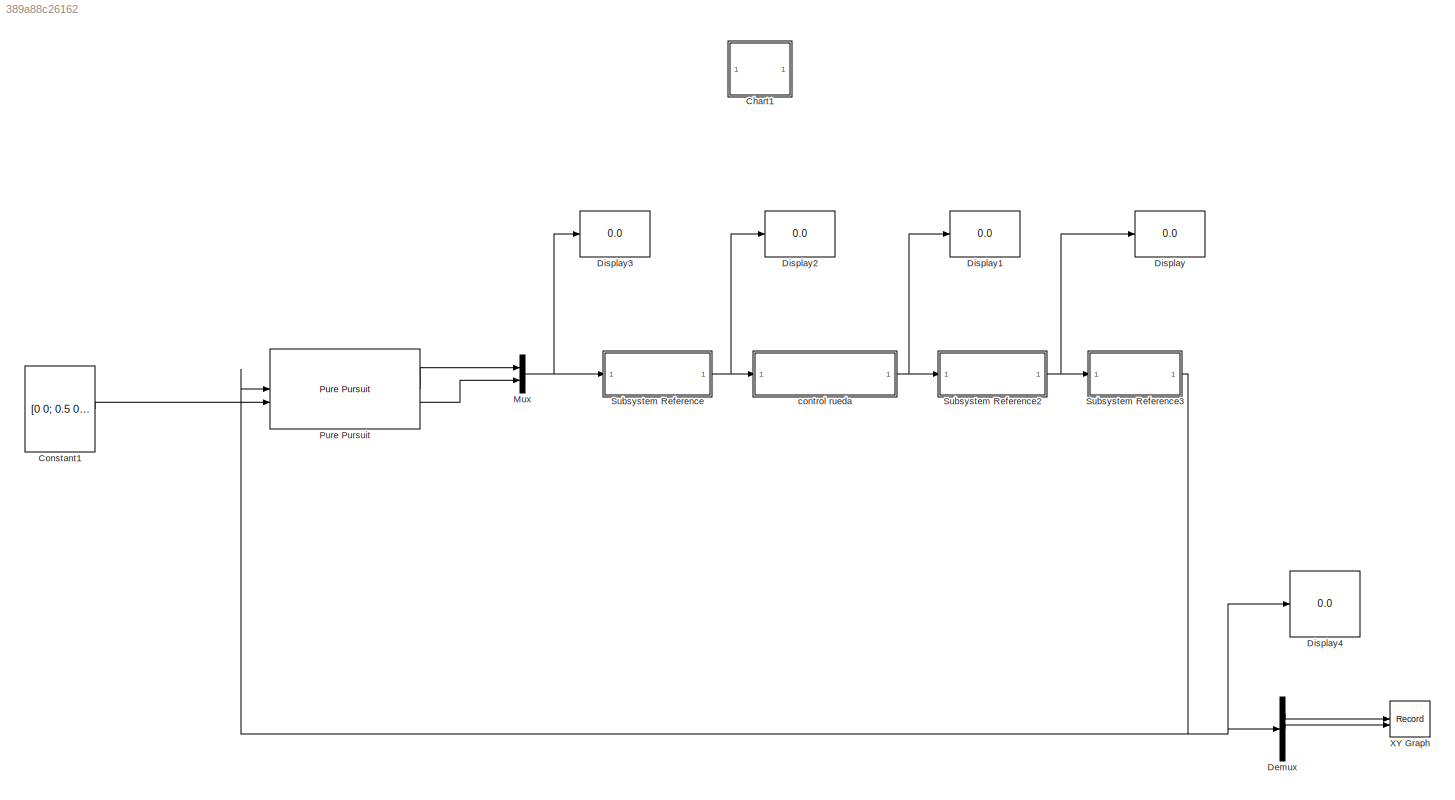
MODEL slx_389a88c26162
KIND model
CONFIG AbsTol = auto
CONFIG EnableMultiTasking = on
CONFIG FixedStep = auto
CONFIG MaxStep = auto
CONFIG MinStep = auto
CONFIG RelTol = 1e-3
CONFIG SampleTimeConstraint = Unconstrained
CONFIG SolverName = FixedStepAuto
CONFIG StartTime = 0.0
CONFIG StopTime = 60
WORKSPACE source: mxarray member
WORKSPACE d = 0.19
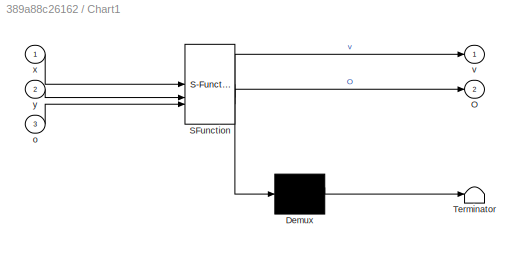
BLOCK [SubSystem] Chart1
  Commented = on
  ErrorFcn = Stateflow.Translate.translate
  PermitHierarchicalResolution = ExplicitOnly
  SFBlockType = Chart
  TreatAsAtomicUnit = on
BLOCK [Demux] Chart1/ Demux 
  Outputs = 1
BLOCK [S-Function] Chart1/ SFunction 
  EnableBusSupport = on
  FunctionName = sf_sfun
  PortCounts = [3 3]
  SFcnIsStateOwnerBlock = off
  SFunctionDeploymentMode = off
  Tag = Stateflow S-Function 1
BLOCK [Terminator] Chart1/ Terminator 
BLOCK [Outport] Chart1/O
  Port = 2
BLOCK [Inport] Chart1/o
  Port = 3
BLOCK [Outport] Chart1/v
BLOCK [Inport] Chart1/x
BLOCK [Inport] Chart1/y
  Port = 2
BLOCK [Constant] Constant1
  Value = [0 0; 0.5 0; 0.5 4.8; 0.8 4.8; 0.8 5.1; 0.8 5.1]
BLOCK [Demux] Demux
  Outputs = 3
BLOCK [Display] Display
  Decimation = 1
BLOCK [Display] Display1
  Decimation = 1
BLOCK [Display] Display2
  Decimation = 1
BLOCK [Display] Display3
  Decimation = 1
BLOCK [Display] Display4
  Decimation = 1
BLOCK [Mux] Mux
  DisplayOption = bar
  Inputs = 2
BLOCK [Reference] Pure Pursuit  REF=robotalgslib/Pure Pursuit
  LibrarySourceBlock = robotmobilelib/Pure Pursuit
  SourceBlock = robotalgslib/Pure Pursuit
  SourceType = nav.slalgs.internal.PurePursuit
BLOCK [SubSystem] Subsystem Reference
  ReferencedSubsystem = MCI
BLOCK [SubSystem] Subsystem Reference2
  ReferencedSubsystem = MCD
BLOCK [SubSystem] Subsystem Reference3
  ReferencedSubsystem = Odometria
BLOCK [Record] XY Graph
  CompatibilityTag = XY
  FileSettingsInternal = {"entries":[{"content":{"excelSettings":{"content":{},"type":"Streamout.ExcelSettings"}},"type":"Streamout.FileSettingStorage","uuid":""}],"packageUris":["http:\/\/schema.mathworks.com\/mf0\/streamout_blocks\/R2020a"],"version":"1.0"}
  Layout = [1 1]
  SignalsInternal = {"entries":[{"content":{"signals":[{"content":{"blockPath":[],"dimensions":[1],"domain":"","lineColor":"#a2142f","plots":[ 1 ],"port":1,"signalID":1,"signalName":"Demux:1"},"type":"RecordBlkView.Signal","uuid":""},{"content":{"blockPath":[],"dimensions":[1],"domain":"","lineColor":"#139fff","plots":[ 1 ],"port":2,"signalID":2,"signalName":"Demux:2"},"type":"RecordBlkView.Signal","uuid":""}]},"type...<+138ch>
  VisualizationBindings = {"xyplotplugin":{"info":[{"series":[{"bindingParametersList":[{"parameter":"X-Axis","signalID":1,"signalName":"Demux:1"},{"parameter":"Y-Axis","signalID":2,"signalName":"Demux:2"}],"seriesID":0}],"subplotID":1}]}}
BLOCK [SubSystem] control rueda
  ReferencedSubsystem = PieroControladoV
LINE Constant1:1 -> Pure Pursuit:2
LINE Demux:1 -> XY Graph:1
LINE Demux:2 -> XY Graph:2
NET Mux:1 -> Display3:1, Subsystem Reference:1
LINE Pure Pursuit:1 -> Mux:1
LINE Pure Pursuit:2 -> Mux:2
NET Subsystem Reference2:1 -> Display:1, Subsystem Reference3:1
NET Subsystem Reference3:1 -> Demux:1, Display4:1, Pure Pursuit:1
NET Subsystem Reference:1 -> Display2:1, control rueda:1
NET control rueda:1 -> Display1:1, Subsystem Reference2:1
note: NET lines group one-source signal fan-out (src -> all destinations, sorted); 1:1 wires keep LINE
CHART Chart1 states=9 transitions=9
  STATE_LABEL 'Paro\nentry:\nO=pi/2;\nv=0;'
  STATE_LABEL 'Recto4\nentry:\nv=0.205;\nO=pi/2;'
  STATE_LABEL 'GiroDcha\nentry:\nv=0.1;\nO=pi;'
  STATE_LABEL 'Recto1\nentry:\nv=0.205;\nO=pi;'
  STATE_LABEL 'GiroIzq1\nentry:\nv=0.1;\nO=pi/2;'
  STATE_LABEL 'Recto12\nentry:\nv=0.205;\nO=pi/2;'
  STATE_LABEL 'Inicio\nentry:\nO=0;\nv=0;'
  STATE_LABEL 'Marcha\nentry:\nv=0.205;\nO=0;'
  STATE_LABEL 'GiroIzq\nentry:\nv=0.1;\nO=pi/2;'
CHART  states=0 transitions=0
